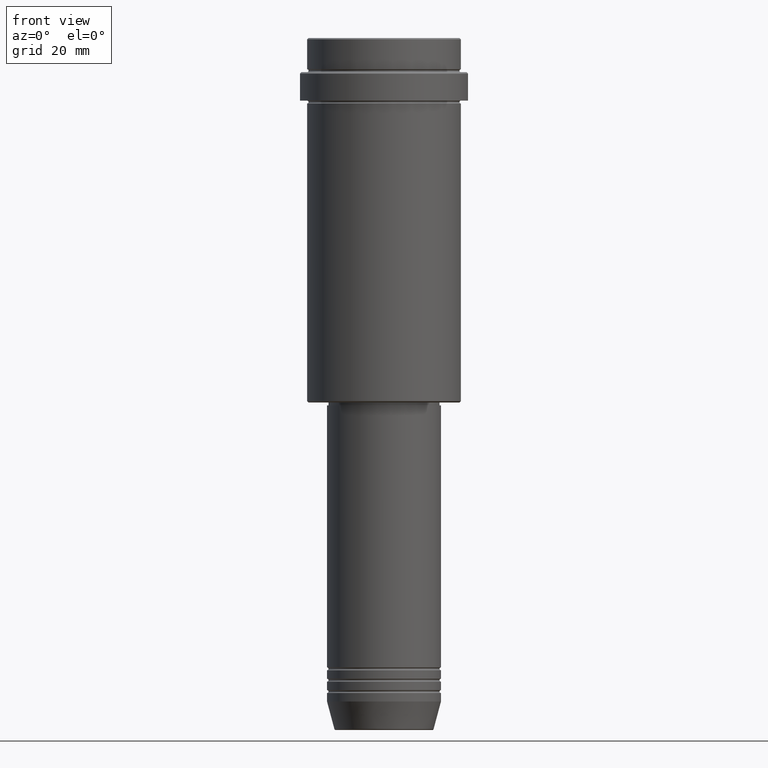
[diagram: clean part render]
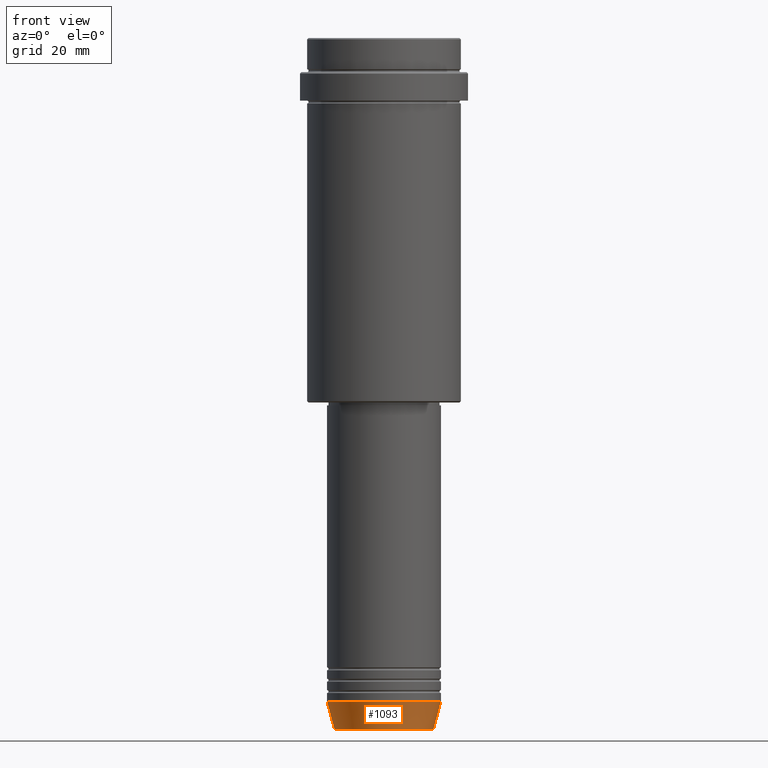
[diagram: same view with one face highlighted and labeled with its STEP entity id]
A machine part, front view. The second image highlights one B-rep face of the part: STEP entity #1093.
In plain terms, the highlighted conical surface has half-angle 15 deg.
Its self-contained STEP definition (entity closure, byte-faithful):
#27 = EDGE_CURVE ( 'NONE', #733, #1248, #725, .T. ) ;
#43 = CARTESIAN_POINT ( 'NONE',  ( 20.00000000000000000, 0.000000000000000000, -232.9999999999999716 ) ) ;
#46 = VERTEX_POINT ( 'NONE', #412 ) ;
#96 = CARTESIAN_POINT ( 'NONE',  ( 0.000000000000000000, 0.000000000000000000, -232.9999999999999716 ) ) ;
#119 = DIRECTION ( 'NONE',  ( 1.000000000000000000, 0.000000000000000000, 0.000000000000000000 ) ) ;
#185 = EDGE_CURVE ( 'NONE', #1248, #835, #316, .T. ) ;
#208 = DIRECTION ( 'NONE',  ( -0.000000000000000000, -0.000000000000000000, 1.000000000000000000 ) ) ;
#237 = EDGE_LOOP ( 'NONE', ( #857, #904, #1142, #920 ) ) ;
#316 = CIRCLE ( 'NONE', #1334, 20.00000000000000000 ) ;
#412 = CARTESIAN_POINT ( 'NONE',  ( 17.41980749484382329, 0.000000000000000000, -242.6294095225512422 ) ) ;
#415 = CARTESIAN_POINT ( 'NONE',  ( 0.000000000000000000, 0.000000000000000000, -232.9999999999999716 ) ) ;
#420 = CONICAL_SURFACE ( 'NONE', #1189, 20.00000000000000000, 0.2617993877991499074 ) ;
#422 = CARTESIAN_POINT ( 'NONE',  ( 0.000000000000000000, 0.000000000000000000, -242.6294095225512422 ) ) ;
#432 = EDGE_CURVE ( 'NONE', #46, #835, #1170, .T. ) ;
#608 = CARTESIAN_POINT ( 'NONE',  ( -20.00000000000000000, 2.449293598294706513E-15, -232.9999999999999716 ) ) ;
#725 = LINE ( 'NONE', #608, #1000 ) ;
#733 = VERTEX_POINT ( 'NONE', #1246 ) ;
#745 = DIRECTION ( 'NONE',  ( -0.000000000000000000, -0.000000000000000000, 1.000000000000000000 ) ) ;
#753 = FACE_OUTER_BOUND ( 'NONE', #237, .T. ) ;
#780 = DIRECTION ( 'NONE',  ( 1.000000000000000000, 0.000000000000000000, 0.000000000000000000 ) ) ;
#821 = CARTESIAN_POINT ( 'NONE',  ( 20.00000000000000000, 0.000000000000000000, -232.9999999999999716 ) ) ;
#833 = DIRECTION ( 'NONE',  ( -0.2588190451025211836, 3.169619151431770488E-17, 0.9659258262890680902 ) ) ;
#835 = VERTEX_POINT ( 'NONE', #43 ) ;
#844 = AXIS2_PLACEMENT_3D ( 'NONE', #422, #1218, #119 ) ;
#857 = ORIENTED_EDGE ( 'NONE', *, *, #27, .F. ) ;
#889 = CIRCLE ( 'NONE', #844, 17.41980749484382329 ) ;
#904 = ORIENTED_EDGE ( 'NONE', *, *, #972, .T. ) ;
#920 = ORIENTED_EDGE ( 'NONE', *, *, #185, .F. ) ;
#972 = EDGE_CURVE ( 'NONE', #733, #46, #889, .T. ) ;
#988 = DIRECTION ( 'NONE',  ( 1.000000000000000000, 0.000000000000000000, 0.000000000000000000 ) ) ;
#1000 = VECTOR ( 'NONE', #833, 1000.000000000000114 ) ;
#1093 = ADVANCED_FACE ( 'NONE', ( #753 ), #420, .T. ) ;
#1142 = ORIENTED_EDGE ( 'NONE', *, *, #432, .T. ) ;
#1170 = LINE ( 'NONE', #821, #1185 ) ;
#1185 = VECTOR ( 'NONE', #1346, 1000.000000000000114 ) ;
#1189 = AXIS2_PLACEMENT_3D ( 'NONE', #96, #208, #780 ) ;
#1218 = DIRECTION ( 'NONE',  ( -0.000000000000000000, -0.000000000000000000, 1.000000000000000000 ) ) ;
#1246 = CARTESIAN_POINT ( 'NONE',  ( -17.41980749484382329, 2.291302373663531915E-15, -242.6294095225512422 ) ) ;
#1248 = VERTEX_POINT ( 'NONE', #1342 ) ;
#1334 = AXIS2_PLACEMENT_3D ( 'NONE', #415, #745, #988 ) ;
#1342 = CARTESIAN_POINT ( 'NONE',  ( -20.00000000000000000, 2.449293598294706513E-15, -232.9999999999999716 ) ) ;
#1346 = DIRECTION ( 'NONE',  ( 0.2588190451025211836, 0.000000000000000000, 0.9659258262890680902 ) ) ;